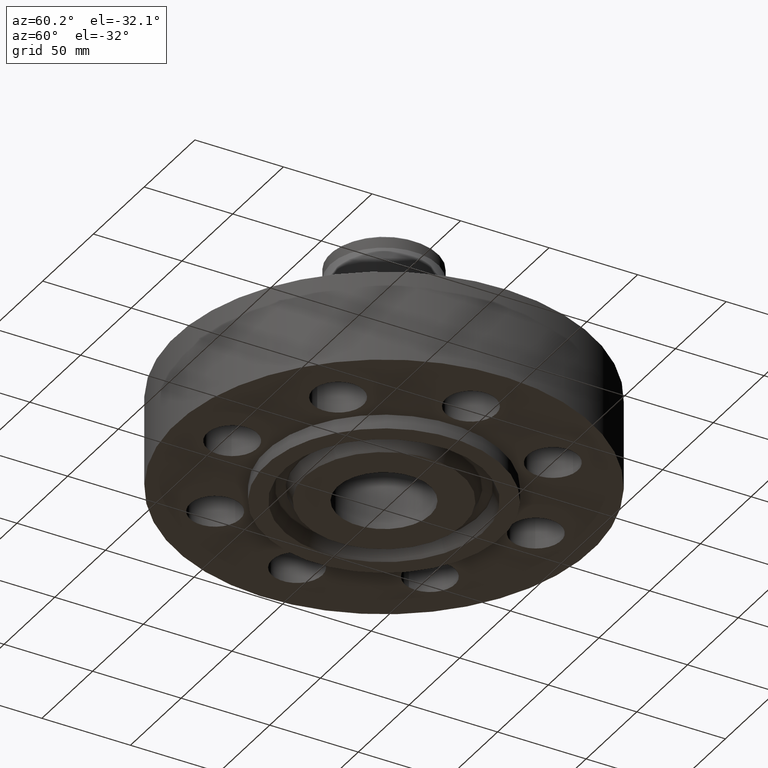
[diagram: clean part render]
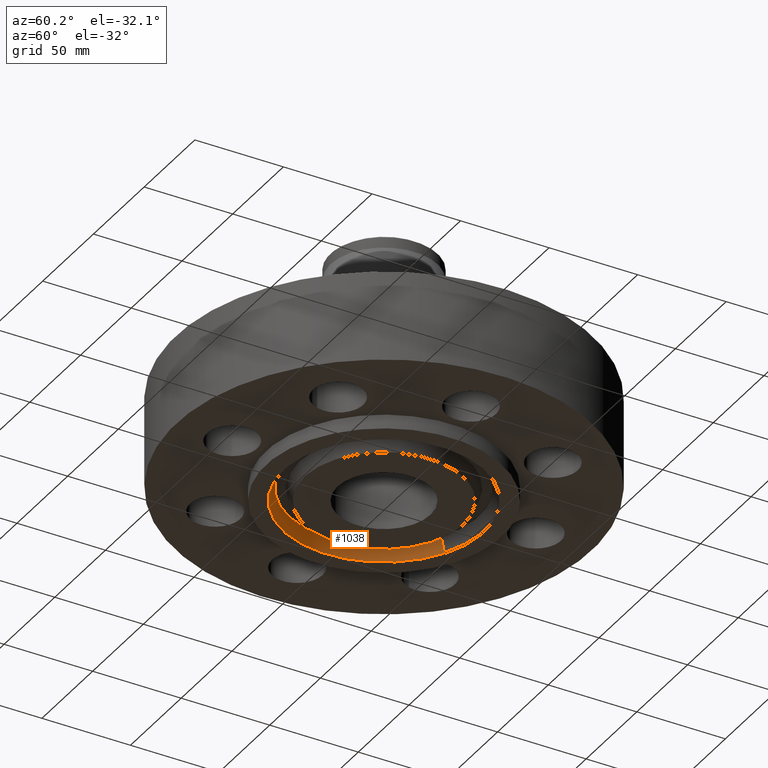
[diagram: same view with one face highlighted and labeled with its STEP entity id]
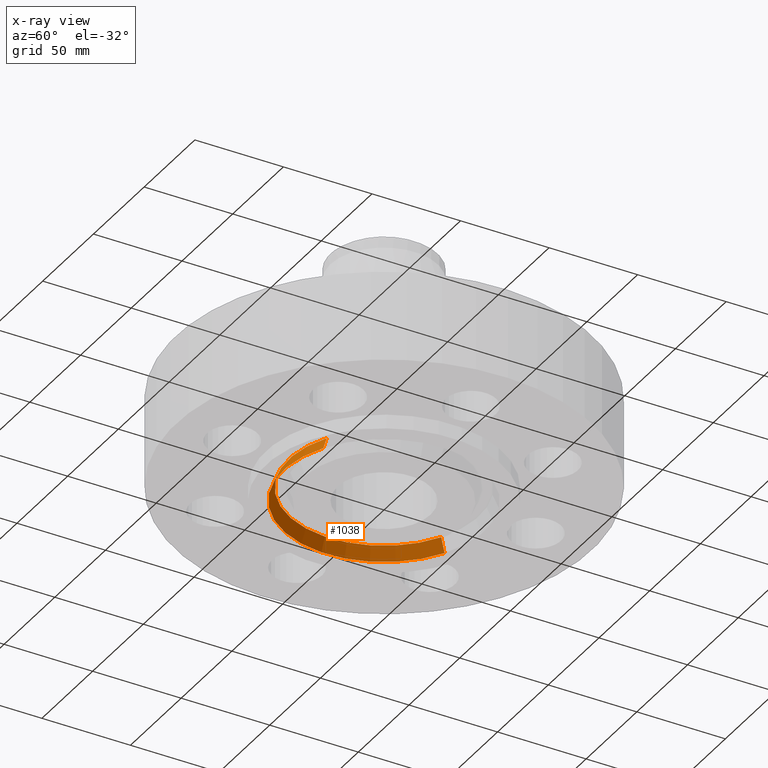
[diagram: x-ray of the same camera — body ghosted, the highlighted face saturated]
A machine part, auxiliary view. The second image highlights one B-rep face of the part: STEP entity #1038.
The next image is the same camera in x-ray: the body ghosted, the highlighted face saturated — about 0% of this face is hidden behind the body in this view.
In plain terms, the highlighted conical surface has half-angle 23 deg.
Its self-contained STEP definition (entity closure, byte-faithful):
#937=AXIS2_PLACEMENT_3D('Circle Axis2P3D',#935,#936,$) ;
#984=AXIS2_PLACEMENT_3D('Circle Axis2P3D',#982,#983,$) ;
#1020=AXIS2_PLACEMENT_3D('Cone Axis2P3D',#1017,#1018,#1019) ;
#935=CARTESIAN_POINT('Axis2P3D Location',(2.09805925913E-016,-2.79741234551E-016,-0.313000000001)) ;
#939=CARTESIAN_POINT('Vertex',(1.07127636602,-1.96095823455,-0.313000000001)) ;
#941=CARTESIAN_POINT('Vertex',(-1.07127636602,1.96095823455,-0.313000000001)) ;
#982=CARTESIAN_POINT('Axis2P3D Location',(0.,0.,-0.0188873350169)) ;
#986=CARTESIAN_POINT('Vertex',(-1.01142324242,1.85139782671,-0.0188873350169)) ;
#988=CARTESIAN_POINT('Vertex',(1.01142324242,-1.85139782671,-0.0188873350169)) ;
#1017=CARTESIAN_POINT('Axis2P3D Location',(0.,0.,-0.0188873350169)) ;
#1022=CARTESIAN_POINT('Line Origine',(-1.04134980422,1.90617803063,-0.165943667509)) ;
#1027=CARTESIAN_POINT('Line Origine',(1.04134980422,-1.90617803063,-0.165943667509)) ;
#936=DIRECTION('Axis2P3D Direction',(0.,0.,-0.0393700787402)) ;
#983=DIRECTION('Axis2P3D Direction',(0.,0.,0.0393700787402)) ;
#1018=DIRECTION('Axis2P3D Direction',(-0.,-0.,-0.0393700787402)) ;
#1019=DIRECTION('Axis2P3D XDirection',(-0.0188750212049,0.0345504945626,0.)) ;
#1023=DIRECTION('Vector Direction',(-0.00737505833565,0.0134999537303,-0.0362403485611)) ;
#1028=DIRECTION('Vector Direction',(0.00737505833565,-0.0134999537303,-0.0362403485611)) ;
#1024=VECTOR('Line Direction',#1023,0.0393700787402) ;
#1029=VECTOR('Line Direction',#1028,0.0393700787402) ;
#1033=ORIENTED_EDGE('',*,*,#943,.T.) ;
#1034=ORIENTED_EDGE('',*,*,#1026,.T.) ;
#1035=ORIENTED_EDGE('',*,*,#990,.T.) ;
#1036=ORIENTED_EDGE('',*,*,#1031,.F.) ;
#1038=ADVANCED_FACE('PartBody',(#1037),#1021,.F.) ;
#938=CIRCLE('generated circle',#937,2.23450000001) ;
#985=CIRCLE('generated circle',#984,2.10965658059) ;
#1021=CONICAL_SURFACE('Cone',#1020,2.10965658059,0.401425727959) ;
#943=EDGE_CURVE('',#940,#942,#938,.T.) ;
#990=EDGE_CURVE('',#987,#989,#985,.T.) ;
#1026=EDGE_CURVE('',#942,#987,#1025,.F.) ;
#1031=EDGE_CURVE('',#940,#989,#1030,.F.) ;
#1032=EDGE_LOOP('',(#1033,#1034,#1035,#1036)) ;
#1037=FACE_OUTER_BOUND('',#1032,.T.) ;
#1025=LINE('Line',#1022,#1024) ;
#1030=LINE('Line',#1027,#1029) ;
#940=VERTEX_POINT('',#939) ;
#942=VERTEX_POINT('',#941) ;
#987=VERTEX_POINT('',#986) ;
#989=VERTEX_POINT('',#988) ;